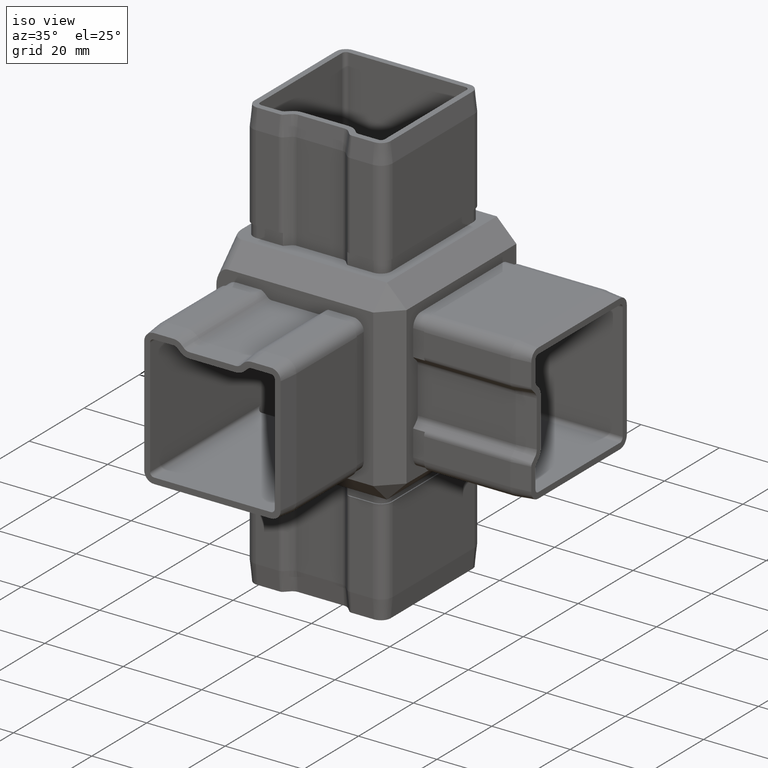
[diagram: clean part render]
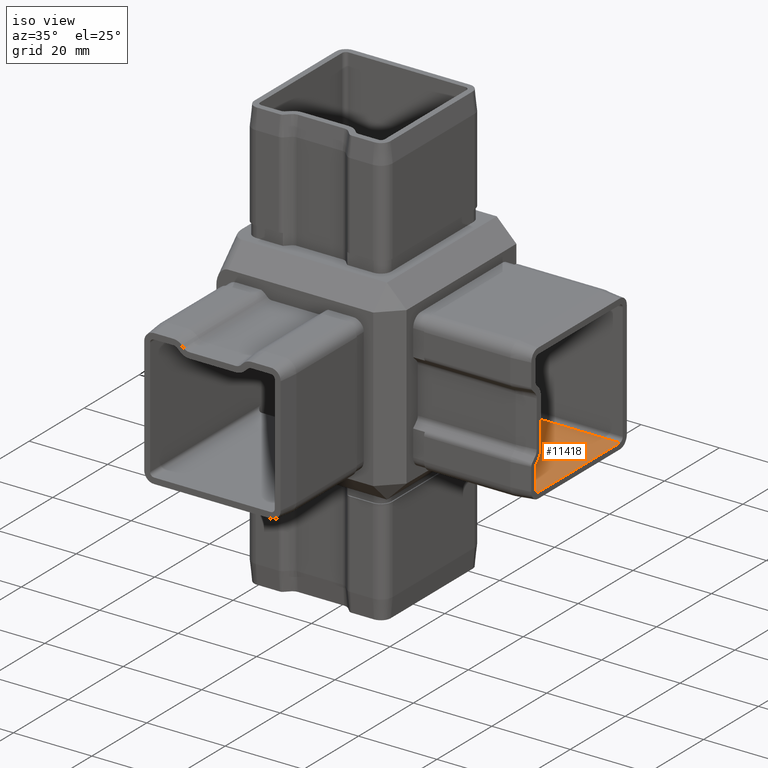
[diagram: same view with one face highlighted and labeled with its STEP entity id]
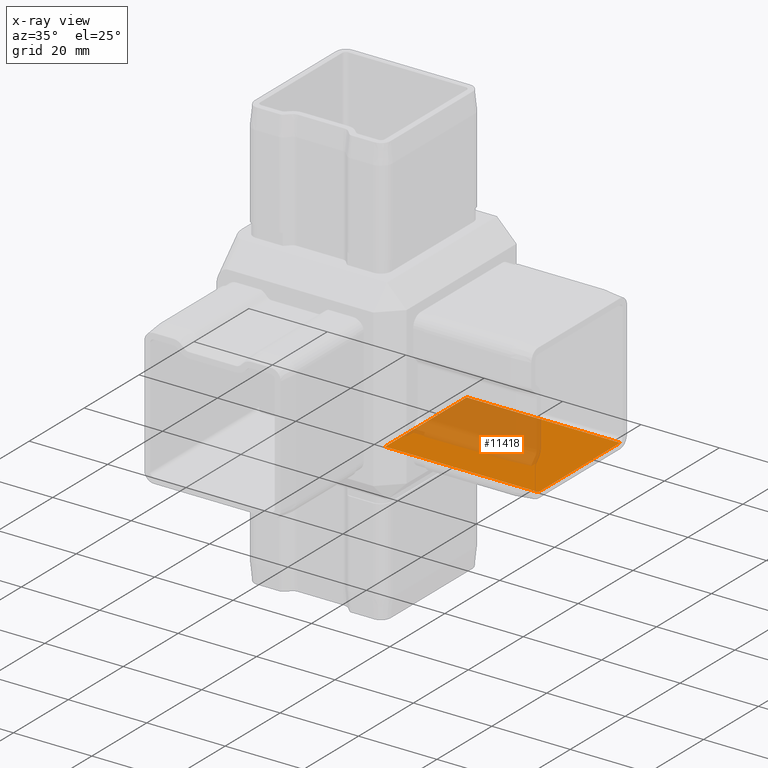
[diagram: x-ray of the same camera — body ghosted, the highlighted face saturated]
A machine part, iso view. The second image highlights one B-rep face of the part: STEP entity #11418.
The next image is the same camera in x-ray: the body ghosted, the highlighted face saturated — about 46% of this face is hidden behind the body in this view.
In plain terms, the highlighted planar face has unit normal (0, 0, 1).
Its self-contained STEP definition (entity closure, byte-faithful):
#661 = DIRECTION ( 'NONE',  ( -1.000000000000000000, -1.196361017915039700E-016, 4.440892098500625200E-016 ) ) ;
#723 = CARTESIAN_POINT ( 'NONE',  ( 52.49999999999999300, -12.39999999999997000, -15.90000000000002200 ) ) ;
#1045 = CARTESIAN_POINT ( 'NONE',  ( 13.39999999999999500, 17.39999999999999900, -15.90000000000000700 ) ) ;
#1228 = VERTEX_POINT ( 'NONE', #1045 ) ;
#1249 = ORIENTED_EDGE ( 'NONE', *, *, #12926, .F. ) ;
#1304 = DIRECTION ( 'NONE',  ( 0.0000000000000000000, -1.000000000000000000, 5.782411586589356200E-017 ) ) ;
#2704 = DIRECTION ( 'NONE',  ( -1.000000000000000000, -1.196361017915039700E-016, 4.440892098500625200E-016 ) ) ;
#2995 = VECTOR ( 'NONE', #2704, 1000.000000000000000 ) ;
#3085 = LINE ( 'NONE', #723, #9920 ) ;
#3753 = VERTEX_POINT ( 'NONE', #13983 ) ;
#3928 = PLANE ( 'NONE',  #7861 ) ;
#4262 = CARTESIAN_POINT ( 'NONE',  ( 12.40000000000000200, 18.39999999999999900, -15.89999999999999000 ) ) ;
#4268 = LINE ( 'NONE', #11252, #18041 ) ;
#5054 = ORIENTED_EDGE ( 'NONE', *, *, #6187, .T. ) ;
#5094 = DIRECTION ( 'NONE',  ( 1.196361017915040200E-016, -1.000000000000000000, 1.132126869302152900E-016 ) ) ;
#6187 = EDGE_CURVE ( 'NONE', #1228, #18913, #14495, .T. ) ;
#6542 = CARTESIAN_POINT ( 'NONE',  ( 13.40000000000000200, 17.39999999999998800, -15.89999999999999000 ) ) ;
#7224 = CARTESIAN_POINT ( 'NONE',  ( 13.40000000000000200, -12.39999999999997500, -15.90000000000000400 ) ) ;
#7399 = CARTESIAN_POINT ( 'NONE',  ( 52.49999999999999300, -12.39999999999997000, -15.90000000000002200 ) ) ;
#7758 = EDGE_CURVE ( 'NONE', #16137, #3753, #3085, .T. ) ;
#7858 = CARTESIAN_POINT ( 'NONE',  ( 52.49999999999999300, 17.40000000000000200, -15.90000000000002500 ) ) ;
#7861 = AXIS2_PLACEMENT_3D ( 'NONE', #4262, #11823, #1304 ) ;
#9920 = VECTOR ( 'NONE', #5094, 1000.000000000000000 ) ;
#9974 = VECTOR ( 'NONE', #17141, 1000.000000000000000 ) ;
#10815 = LINE ( 'NONE', #7399, #2995 ) ;
#11252 = CARTESIAN_POINT ( 'NONE',  ( 52.49999999999999300, 17.40000000000000200, -15.90000000000002500 ) ) ;
#11418 = ADVANCED_FACE ( 'NONE', ( #14616 ), #3928, .T. ) ;
#11823 = DIRECTION ( 'NONE',  ( 0.0000000000000000000, 5.782411586589356200E-017, 1.000000000000000000 ) ) ;
#12926 = EDGE_CURVE ( 'NONE', #3753, #18913, #10815, .T. ) ;
#13983 = CARTESIAN_POINT ( 'NONE',  ( 52.49999999999999300, -12.39999999999997000, -15.90000000000002200 ) ) ;
#14495 = LINE ( 'NONE', #6542, #9974 ) ;
#14616 = FACE_OUTER_BOUND ( 'NONE', #16993, .T. ) ;
#16137 = VERTEX_POINT ( 'NONE', #7858 ) ;
#16712 = ORIENTED_EDGE ( 'NONE', *, *, #18636, .T. ) ;
#16993 = EDGE_LOOP ( 'NONE', ( #5054, #1249, #18688, #16712 ) ) ;
#17141 = DIRECTION ( 'NONE',  ( 0.0000000000000000000, -1.000000000000000000, 5.782411586589356200E-017 ) ) ;
#18041 = VECTOR ( 'NONE', #661, 1000.000000000000000 ) ;
#18636 = EDGE_CURVE ( 'NONE', #16137, #1228, #4268, .T. ) ;
#18688 = ORIENTED_EDGE ( 'NONE', *, *, #7758, .F. ) ;
#18913 = VERTEX_POINT ( 'NONE', #7224 ) ;